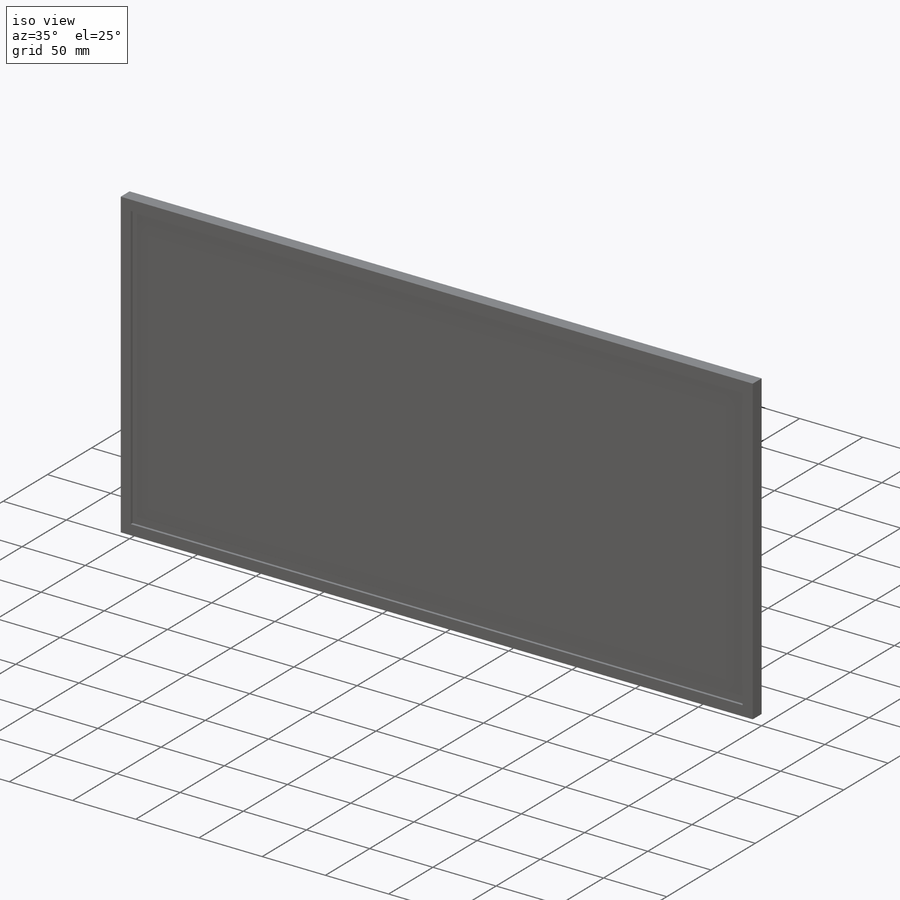
[diagram: iso view]
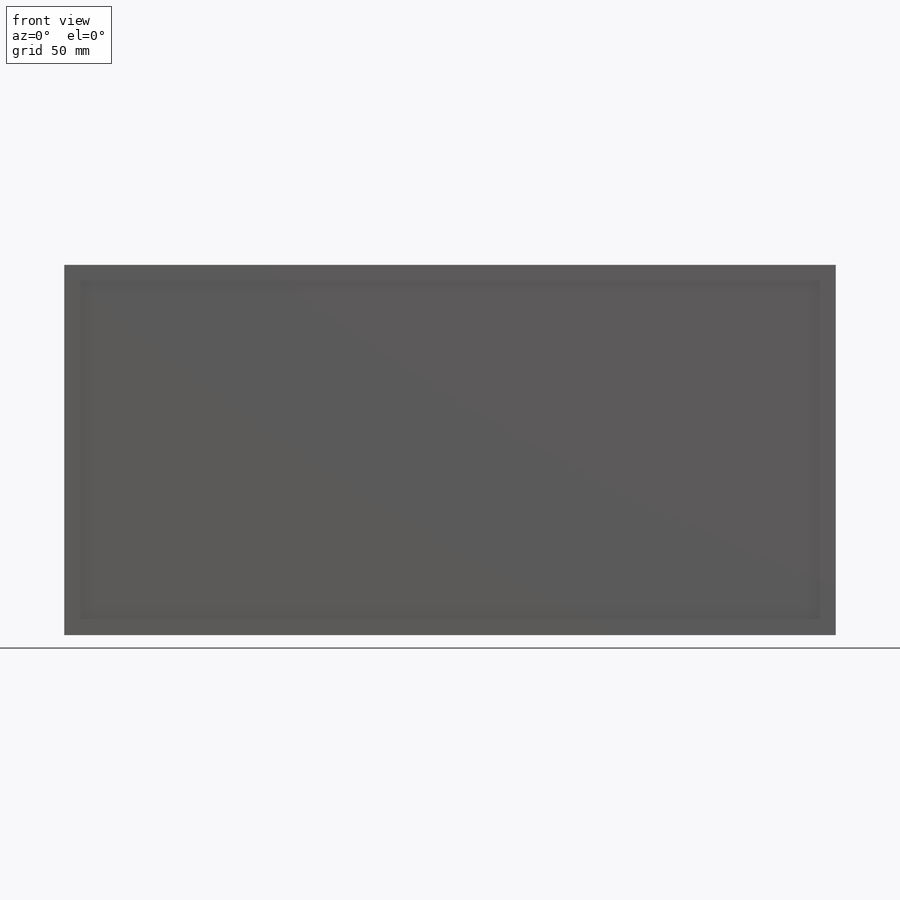
[diagram: front view]
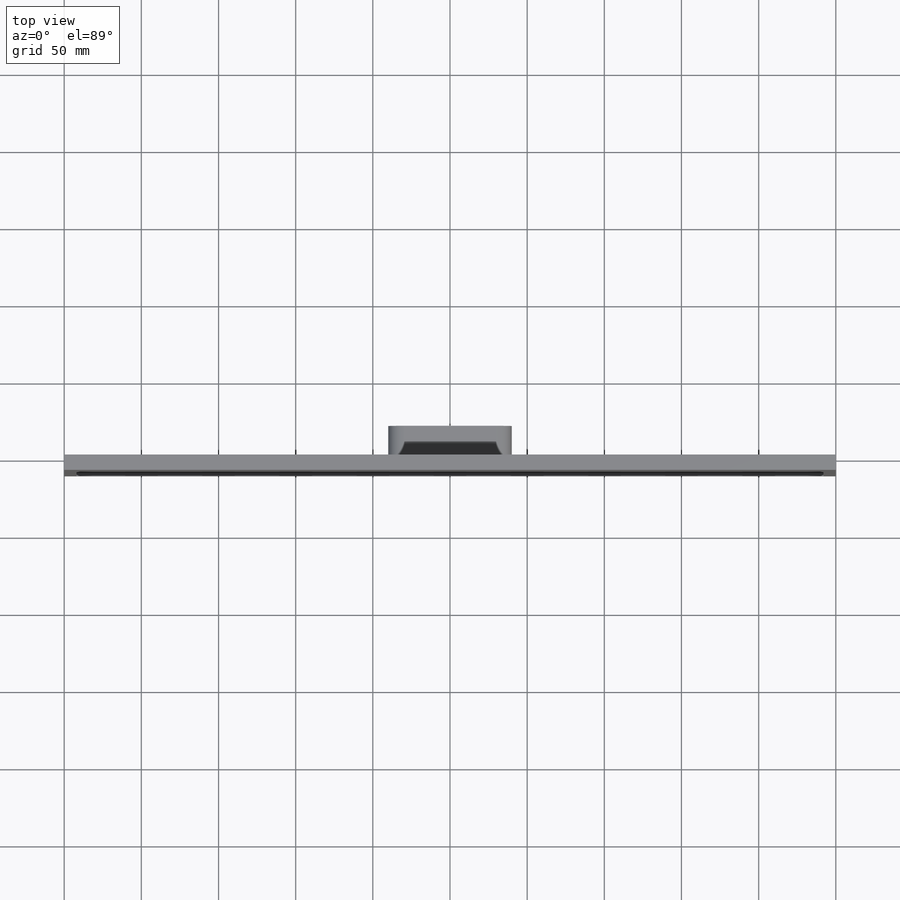
[diagram: top view]
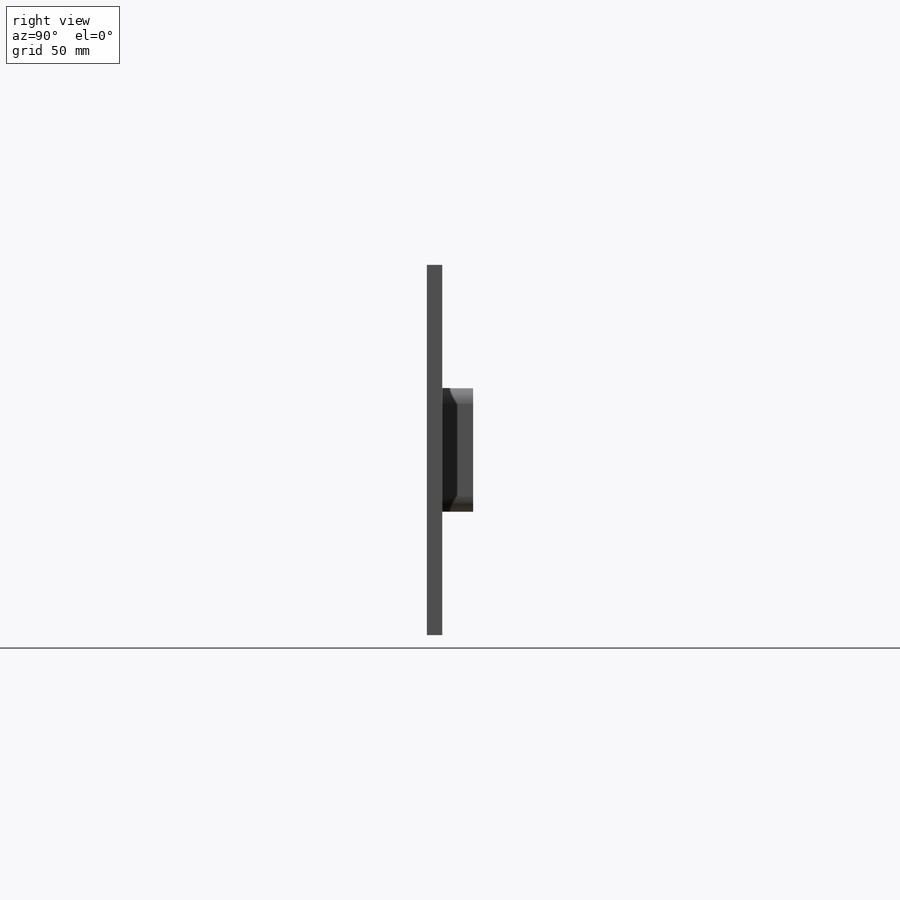
[diagram: right view]
SOLIDWORKS PART (.sldprt)
format: sldprt  version: not decoded by parser v0  size: 240,128 bytes
history: native  units: mm
features: sketch x5, plane x3, extrude x3, material x1, shell x1, cut_extrude x1 (+10 scaffold rows collapsed)
feature tree (24):
  scaffold x10  (default folders/planes/origin — collapsed)
  material  "材質 <未指定>"
  plane  "前基準面"
  plane  "上基準面"
  plane  "右基準面"
  sketch  "草圖1"  dims[D1=240.0mm D2=500.0mm]
  extrude  "填料-伸長1"  Depth=10mm
  shell  "薄殼1"  Thickness=8mm
  sketch  "草圖2"  dims[D3=10.0mm D1=80.0mm D2=80.0mm]
  extrude  "填料-伸長2"  Depth=20mm
  sketch  "草圖7"  dims[c1.D1=9.9mm c1.D2=14.5mm c2.D1=9.9mm c2.D3=30.0mm]
  sketch  "草圖8"  dims[D2=0.5mm D5=0.5mm D1=6.3mm D3=5.5mm D4=6.3mm D6=15.0mm D7=7.8mm D8=~9.356087mm]
  extrude  "填料-伸長3"  Depth=14mm
  sketch  "草圖9"  dims[D1=3.3mm]
  cut_extrude  "除料-伸長1"  Depth=10mm
decode coverage: 10 of 10 modeling features carry decoded parameters
note: ~ marks probable driven/reference dimensions
note: suppression state not decoded; provenance and decode notes live in map.json
